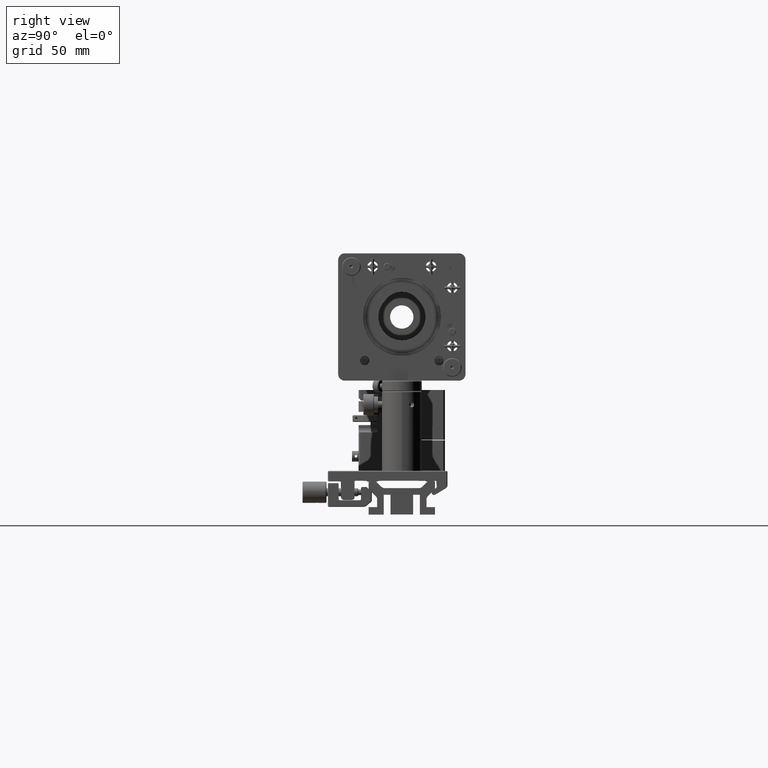
[diagram: clean part render]
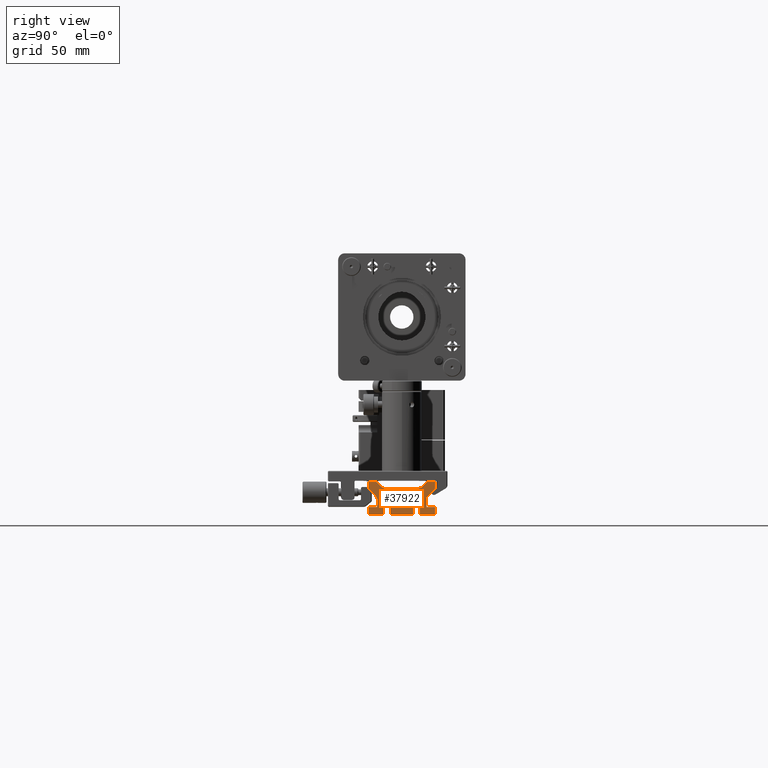
[diagram: same view with one face highlighted and labeled with its STEP entity id]
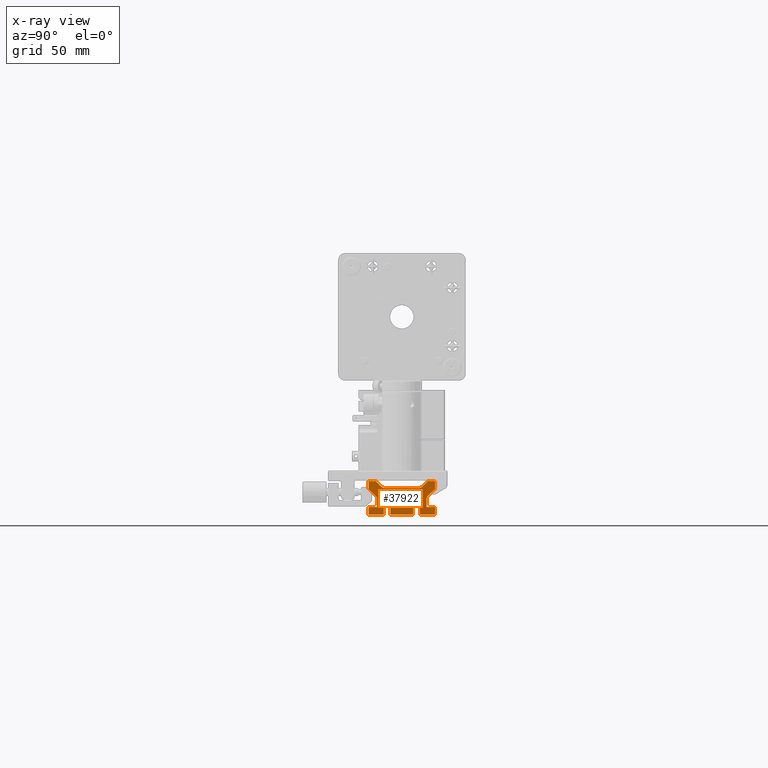
[diagram: x-ray of the same camera — body ghosted, the highlighted face saturated]
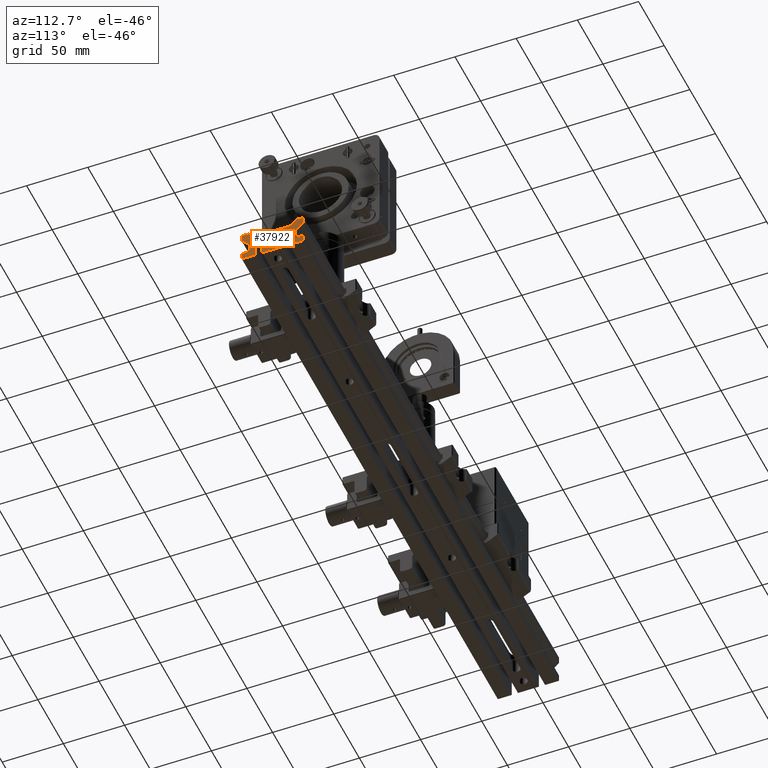
[diagram: same view with one face highlighted and labeled with its STEP entity id]
A machine part, right view. The second image highlights one B-rep face of the part: STEP entity #37922.
The next image is the same camera in x-ray: the body ghosted, the highlighted face saturated — about 0% of this face is hidden behind the body in this view.
A second angle (auxiliary view) of the same face is appended — the face is thin or edge-on in the first view.
In plain terms, the highlighted planar face has unit normal (1, -0, -0).
Its self-contained STEP definition (entity closure, byte-faithful):
#1345=LINE('',#56856,#4655);
#1348=LINE('',#56861,#4658);
#1350=LINE('',#56865,#4660);
#1353=LINE('',#56873,#4663);
#1355=LINE('',#56877,#4665);
#1357=LINE('',#56881,#4667);
#1359=LINE('',#56885,#4669);
#1362=LINE('',#56893,#4672);
#1365=LINE('',#56901,#4675);
#1367=LINE('',#56905,#4677);
#1369=LINE('',#56909,#4679);
#1371=LINE('',#56913,#4681);
#1374=LINE('',#56921,#4684);
#1376=LINE('',#56925,#4686);
#1378=LINE('',#56929,#4688);
#1380=LINE('',#56933,#4690);
#1382=LINE('',#56937,#4692);
#1384=LINE('',#56941,#4694);
#1386=LINE('',#56945,#4696);
#1388=LINE('',#56949,#4698);
#1390=LINE('',#56953,#4700);
#1392=LINE('',#56957,#4702);
#1394=LINE('',#56961,#4704);
#1396=LINE('',#56964,#4706);
#4655=VECTOR('',#45069,5.7);
#4658=VECTOR('',#45074,6.4);
#4660=VECTOR('',#45078,5.95735931288072);
#4663=VECTOR('',#45087,7.80832611206852);
#4665=VECTOR('',#45091,5.7);
#4667=VECTOR('',#45095,5.61370849898476);
#4669=VECTOR('',#45099,5.49705627484772);
#4672=VECTOR('',#45108,25.624559927995);
#4675=VECTOR('',#45117,5.49705627484772);
#4677=VECTOR('',#45121,5.61370849898476);
#4679=VECTOR('',#45125,5.7);
#4681=VECTOR('',#45129,7.80832611206853);
#4684=VECTOR('',#45138,5.95735931288071);
#4686=VECTOR('',#45142,6.4);
#4688=VECTOR('',#45146,5.7);
#4690=VECTOR('',#45150,11.4);
#4692=VECTOR('',#45154,15.);
#4694=VECTOR('',#45158,5.1);
#4696=VECTOR('',#45162,14.9);
#4698=VECTOR('',#45166,17.);
#4700=VECTOR('',#45170,14.9);
#4702=VECTOR('',#45174,5.1);
#4704=VECTOR('',#45178,15.);
#4706=VECTOR('',#45182,11.4);
#9075=FACE_OUTER_BOUND('',#11369,.T.);
#11369=EDGE_LOOP('',(#25669,#25670,#25671,#25672,#25673,#25674,#25675,#25676,
#25677,#25678,#25679,#25680,#25681,#25682,#25683,#25684,#25685,#25686,#25687,
#25688,#25689,#25690,#25691,#25692,#25693,#25694,#25695,#25696));
#14129=CIRCLE('',#40670,3.);
#14130=CIRCLE('',#40676,3.8);
#14131=CIRCLE('',#40679,3.8);
#14132=CIRCLE('',#40685,3.);
#16088=VERTEX_POINT('',#56854);
#16089=VERTEX_POINT('',#56855);
#16090=VERTEX_POINT('',#56860);
#16091=VERTEX_POINT('',#56864);
#16092=VERTEX_POINT('',#56868);
#16093=VERTEX_POINT('',#56872);
#16094=VERTEX_POINT('',#56876);
#16095=VERTEX_POINT('',#56880);
#16096=VERTEX_POINT('',#56884);
#16097=VERTEX_POINT('',#56888);
#16098=VERTEX_POINT('',#56892);
#16099=VERTEX_POINT('',#56896);
#16100=VERTEX_POINT('',#56900);
#16101=VERTEX_POINT('',#56904);
#16102=VERTEX_POINT('',#56908);
#16103=VERTEX_POINT('',#56912);
#16104=VERTEX_POINT('',#56916);
#16105=VERTEX_POINT('',#56920);
#16106=VERTEX_POINT('',#56924);
#16107=VERTEX_POINT('',#56928);
#16108=VERTEX_POINT('',#56932);
#16109=VERTEX_POINT('',#56936);
#16110=VERTEX_POINT('',#56940);
#16111=VERTEX_POINT('',#56944);
#16112=VERTEX_POINT('',#56948);
#16113=VERTEX_POINT('',#56952);
#16114=VERTEX_POINT('',#56956);
#16115=VERTEX_POINT('',#56960);
#19815=EDGE_CURVE('',#16088,#16089,#1345,.T.);
#19818=EDGE_CURVE('',#16089,#16090,#1348,.T.);
#19820=EDGE_CURVE('',#16090,#16091,#1350,.T.);
#19822=EDGE_CURVE('',#16091,#16092,#14129,.T.);
#19824=EDGE_CURVE('',#16092,#16093,#1353,.T.);
#19826=EDGE_CURVE('',#16093,#16094,#1355,.T.);
#19828=EDGE_CURVE('',#16094,#16095,#1357,.T.);
#19830=EDGE_CURVE('',#16095,#16096,#1359,.T.);
#19832=EDGE_CURVE('',#16096,#16097,#14130,.T.);
#19834=EDGE_CURVE('',#16097,#16098,#1362,.T.);
#19836=EDGE_CURVE('',#16098,#16099,#14131,.T.);
#19838=EDGE_CURVE('',#16099,#16100,#1365,.T.);
#19840=EDGE_CURVE('',#16100,#16101,#1367,.T.);
#19842=EDGE_CURVE('',#16101,#16102,#1369,.T.);
#19844=EDGE_CURVE('',#16102,#16103,#1371,.T.);
#19846=EDGE_CURVE('',#16103,#16104,#14132,.T.);
#19848=EDGE_CURVE('',#16104,#16105,#1374,.T.);
#19850=EDGE_CURVE('',#16105,#16106,#1376,.T.);
#19852=EDGE_CURVE('',#16106,#16107,#1378,.T.);
#19854=EDGE_CURVE('',#16107,#16108,#1380,.T.);
#19856=EDGE_CURVE('',#16108,#16109,#1382,.T.);
#19858=EDGE_CURVE('',#16109,#16110,#1384,.T.);
#19860=EDGE_CURVE('',#16110,#16111,#1386,.T.);
#19862=EDGE_CURVE('',#16111,#16112,#1388,.T.);
#19864=EDGE_CURVE('',#16112,#16113,#1390,.T.);
#19866=EDGE_CURVE('',#16113,#16114,#1392,.T.);
#19868=EDGE_CURVE('',#16114,#16115,#1394,.T.);
#19870=EDGE_CURVE('',#16115,#16088,#1396,.T.);
#25669=ORIENTED_EDGE('',*,*,#19815,.F.);
#25670=ORIENTED_EDGE('',*,*,#19870,.F.);
#25671=ORIENTED_EDGE('',*,*,#19868,.F.);
#25672=ORIENTED_EDGE('',*,*,#19866,.F.);
#25673=ORIENTED_EDGE('',*,*,#19864,.F.);
#25674=ORIENTED_EDGE('',*,*,#19862,.F.);
#25675=ORIENTED_EDGE('',*,*,#19860,.F.);
#25676=ORIENTED_EDGE('',*,*,#19858,.F.);
#25677=ORIENTED_EDGE('',*,*,#19856,.F.);
#25678=ORIENTED_EDGE('',*,*,#19854,.F.);
#25679=ORIENTED_EDGE('',*,*,#19852,.F.);
#25680=ORIENTED_EDGE('',*,*,#19850,.F.);
#25681=ORIENTED_EDGE('',*,*,#19848,.F.);
#25682=ORIENTED_EDGE('',*,*,#19846,.F.);
#25683=ORIENTED_EDGE('',*,*,#19844,.F.);
#25684=ORIENTED_EDGE('',*,*,#19842,.F.);
#25685=ORIENTED_EDGE('',*,*,#19840,.F.);
#25686=ORIENTED_EDGE('',*,*,#19838,.F.);
#25687=ORIENTED_EDGE('',*,*,#19836,.F.);
#25688=ORIENTED_EDGE('',*,*,#19834,.F.);
#25689=ORIENTED_EDGE('',*,*,#19832,.F.);
#25690=ORIENTED_EDGE('',*,*,#19830,.F.);
#25691=ORIENTED_EDGE('',*,*,#19828,.F.);
#25692=ORIENTED_EDGE('',*,*,#19826,.F.);
#25693=ORIENTED_EDGE('',*,*,#19824,.F.);
#25694=ORIENTED_EDGE('',*,*,#19822,.F.);
#25695=ORIENTED_EDGE('',*,*,#19820,.F.);
#25696=ORIENTED_EDGE('',*,*,#19818,.F.);
#36673=PLANE('',#40698);
#37922=ADVANCED_FACE('',(#9075),#36673,.T.);
#40670=AXIS2_PLACEMENT_3D('',#56869,#45082,#45083);
#40676=AXIS2_PLACEMENT_3D('',#56889,#45103,#45104);
#40679=AXIS2_PLACEMENT_3D('',#56897,#45112,#45113);
#40685=AXIS2_PLACEMENT_3D('',#56917,#45133,#45134);
#40698=AXIS2_PLACEMENT_3D('',#56965,#45183,#45184);
#45069=DIRECTION('',(0.,0.,1.));
#45074=DIRECTION('',(0.,1.,0.));
#45078=DIRECTION('',(0.,0.,1.));
#45082=DIRECTION('center_axis',(1.,0.,0.));
#45083=DIRECTION('ref_axis',(0.,-1.,0.));
#45087=DIRECTION('',(0.,-0.707106781186548,0.707106781186547));
#45091=DIRECTION('',(0.,0.,1.));
#45095=DIRECTION('',(0.,1.,0.));
#45099=DIRECTION('',(0.,0.707106781186548,-0.707106781186547));
#45103=DIRECTION('center_axis',(1.,0.,0.));
#45104=DIRECTION('ref_axis',(0.,0.707106781186551,0.707106781186544));
#45108=DIRECTION('',(0.,1.,0.));
#45112=DIRECTION('center_axis',(1.,0.,0.));
#45113=DIRECTION('ref_axis',(0.,0.,1.));
#45117=DIRECTION('',(0.,0.707106781186547,0.707106781186547));
#45121=DIRECTION('',(0.,1.,0.));
#45125=DIRECTION('',(0.,0.,-1.));
#45129=DIRECTION('',(0.,-0.707106781186547,-0.707106781186548));
#45133=DIRECTION('center_axis',(1.,0.,0.));
#45134=DIRECTION('ref_axis',(0.,0.707106781186549,-0.707106781186546));
#45138=DIRECTION('',(0.,0.,-1.));
#45142=DIRECTION('',(0.,1.,0.));
#45146=DIRECTION('',(0.,0.,-1.));
#45150=DIRECTION('',(0.,-1.,0.));
#45154=DIRECTION('',(0.,0.,1.));
#45158=DIRECTION('',(0.,-1.,0.));
#45162=DIRECTION('',(0.,0.,-1.));
#45166=DIRECTION('',(0.,-1.,0.));
#45170=DIRECTION('',(0.,0.,1.));
#45174=DIRECTION('',(0.,-1.,0.));
#45178=DIRECTION('',(0.,0.,-1.));
#45182=DIRECTION('',(0.,-1.,0.));
#45183=DIRECTION('center_axis',(1.,0.,0.));
#45184=DIRECTION('ref_axis',(0.,0.,-1.));
#56854=CARTESIAN_POINT('',(250.,-25.,0.));
#56855=CARTESIAN_POINT('',(250.,-25.,5.7));
#56856=CARTESIAN_POINT('',(250.,-25.,0.));
#56860=CARTESIAN_POINT('',(250.,-18.6,5.7));
#56861=CARTESIAN_POINT('',(250.,-25.,5.7));
#56864=CARTESIAN_POINT('',(250.,-18.6,11.6573593128807));
#56865=CARTESIAN_POINT('',(250.,-18.6,5.7));
#56868=CARTESIAN_POINT('',(250.,-19.4786796564404,13.7786796564404));
#56869=CARTESIAN_POINT('Origin',(250.,-21.6,11.6573593128807));
#56872=CARTESIAN_POINT('',(250.,-25.,19.3));
#56873=CARTESIAN_POINT('',(250.,-19.4786796564404,13.7786796564404));
#56876=CARTESIAN_POINT('',(250.,-25.,25.));
#56877=CARTESIAN_POINT('',(250.,-25.,19.3));
#56880=CARTESIAN_POINT('',(250.,-19.3862915010152,25.));
#56881=CARTESIAN_POINT('',(250.,-25.,25.));
#56884=CARTESIAN_POINT('',(250.,-15.4992857325064,21.1129942314911));
#56885=CARTESIAN_POINT('',(250.,-19.3862915010152,25.));
#56888=CARTESIAN_POINT('',(250.,-12.8122799639975,20.));
#56889=CARTESIAN_POINT('Origin',(250.,-12.8122799639975,23.8));
#56892=CARTESIAN_POINT('',(250.,12.8122799639975,20.));
#56893=CARTESIAN_POINT('',(250.,-12.8122799639975,20.));
#56896=CARTESIAN_POINT('',(250.,15.4992857325064,21.1129942314911));
#56897=CARTESIAN_POINT('Origin',(250.,12.8122799639975,23.8));
#56900=CARTESIAN_POINT('',(250.,19.3862915010152,25.));
#56901=CARTESIAN_POINT('',(250.,15.4992857325064,21.1129942314911));
#56904=CARTESIAN_POINT('',(250.,25.,25.));
#56905=CARTESIAN_POINT('',(250.,19.3862915010152,25.));
#56908=CARTESIAN_POINT('',(250.,25.,19.3));
#56909=CARTESIAN_POINT('',(250.,25.,25.));
#56912=CARTESIAN_POINT('',(250.,19.4786796564404,13.7786796564404));
#56913=CARTESIAN_POINT('',(250.,25.,19.3));
#56916=CARTESIAN_POINT('',(250.,18.6,11.6573593128807));
#56917=CARTESIAN_POINT('Origin',(250.,21.6,11.6573593128807));
#56920=CARTESIAN_POINT('',(250.,18.6,5.7));
#56921=CARTESIAN_POINT('',(250.,18.6,11.6573593128807));
#56924=CARTESIAN_POINT('',(250.,25.,5.7));
#56925=CARTESIAN_POINT('',(250.,18.6,5.7));
#56928=CARTESIAN_POINT('',(250.,25.,0.));
#56929=CARTESIAN_POINT('',(250.,25.,5.7));
#56932=CARTESIAN_POINT('',(250.,13.6,0.));
#56933=CARTESIAN_POINT('',(250.,25.,0.));
#56936=CARTESIAN_POINT('',(250.,13.6,15.));
#56937=CARTESIAN_POINT('',(250.,13.6,0.));
#56940=CARTESIAN_POINT('',(250.,8.5,15.));
#56941=CARTESIAN_POINT('',(250.,13.6,15.));
#56944=CARTESIAN_POINT('',(250.,8.5,0.099999999999998));
#56945=CARTESIAN_POINT('',(250.,8.5,15.));
#56948=CARTESIAN_POINT('',(250.,-8.5,0.099999999999998));
#56949=CARTESIAN_POINT('',(250.,8.5,0.099999999999998));
#56952=CARTESIAN_POINT('',(250.,-8.5,15.));
#56953=CARTESIAN_POINT('',(250.,-8.5,0.099999999999998));
#56956=CARTESIAN_POINT('',(250.,-13.6,15.));
#56957=CARTESIAN_POINT('',(250.,-8.5,15.));
#56960=CARTESIAN_POINT('',(250.,-13.6,0.));
#56961=CARTESIAN_POINT('',(250.,-13.6,15.));
#56964=CARTESIAN_POINT('',(250.,-13.6,0.));
#56965=CARTESIAN_POINT('Origin',(250.,-2.151057E-15,11.0297423944186));